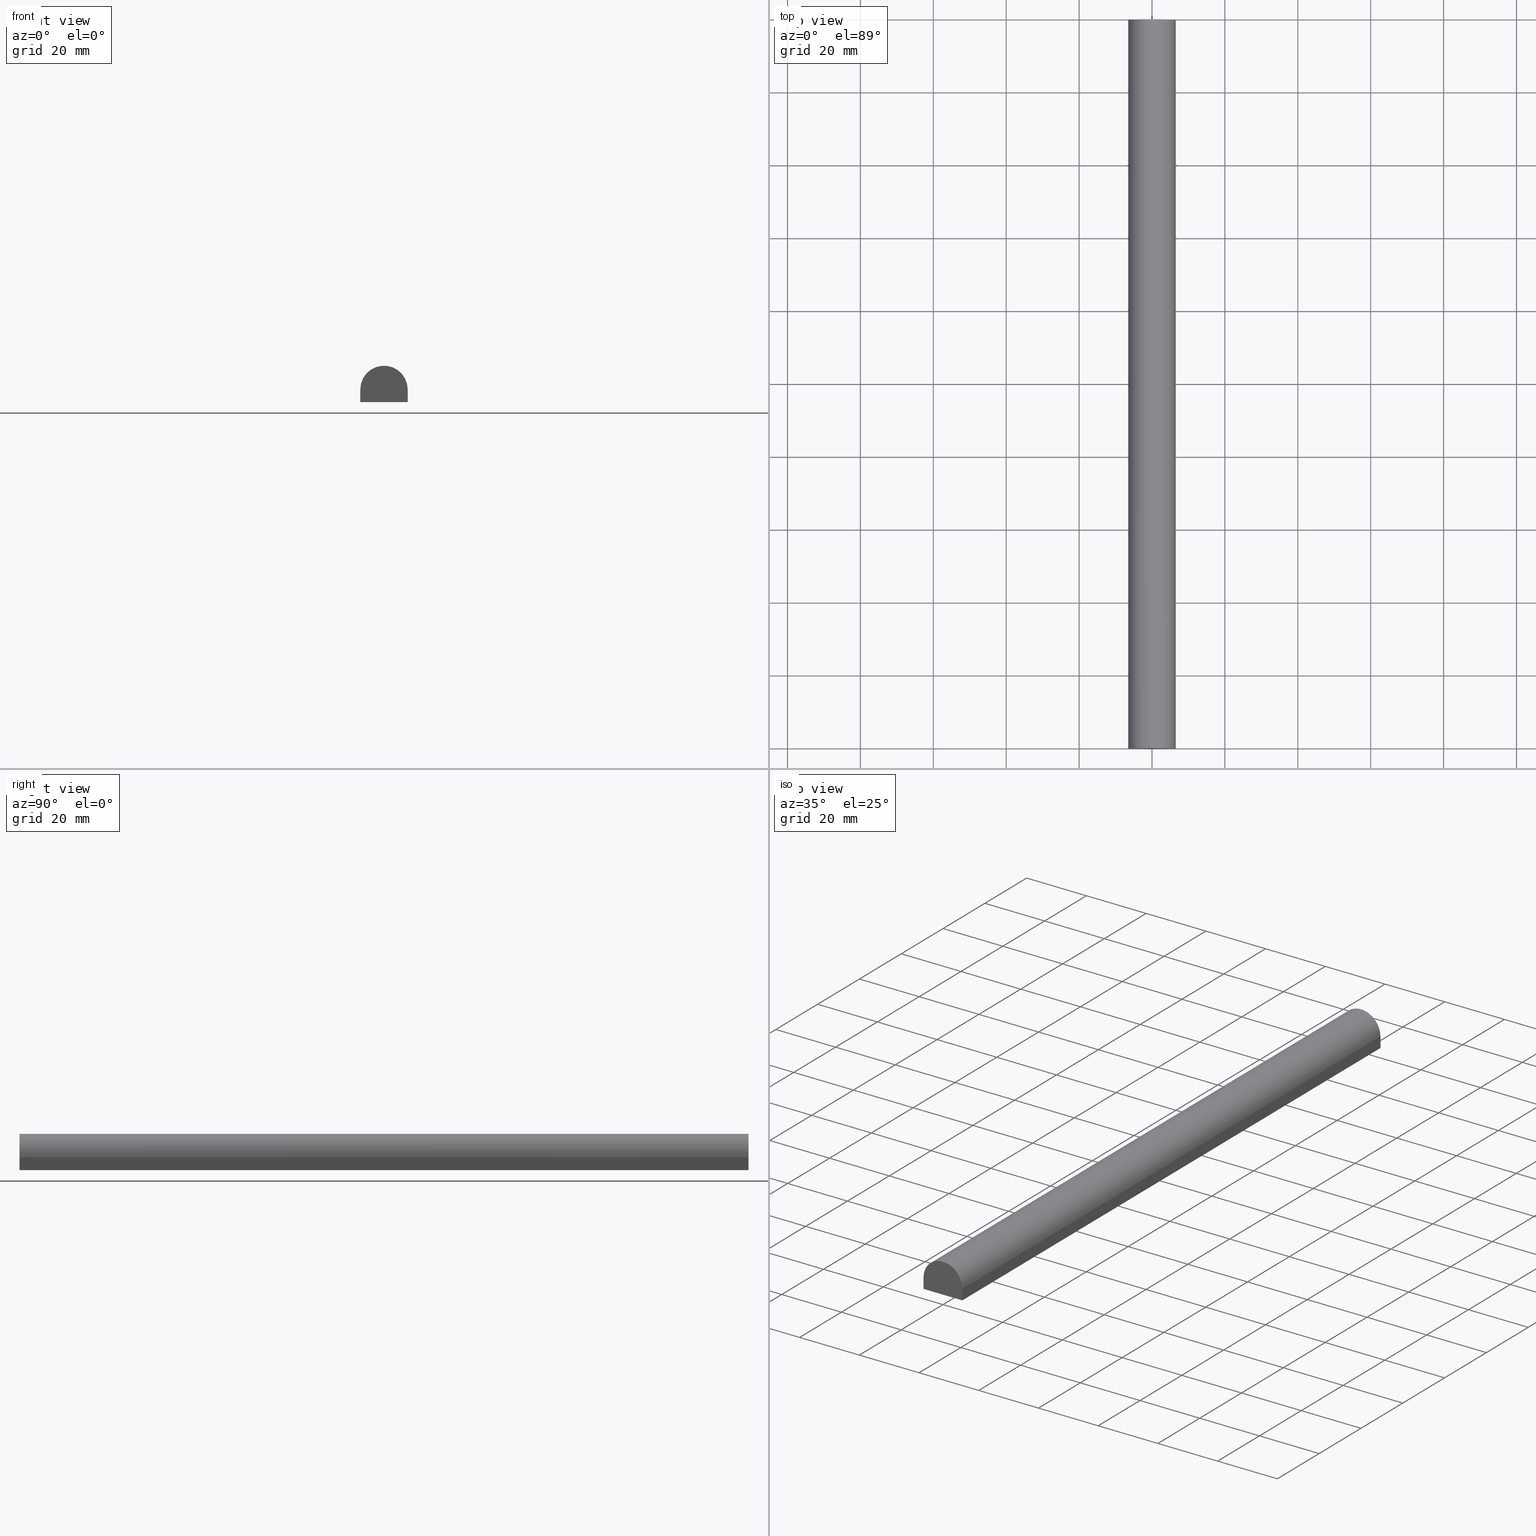
[diagram: canonical four-view strip — front | top / right | iso, engineering-drawing reading convention]
A machine part, canonical four-view strip (front | top / right | iso — engineering-drawing reading convention). The complete STEP part file that produces these views, byte-faithful:
ISO-10303-21;
HEADER;
FILE_DESCRIPTION (( 'STEP AP214' ),
    '1' );
FILE_NAME ('TM_341_5.STEP',
    '2016-05-10T02:57:23',
    ( '' ),
    ( '' ),
    'SwSTEP 2.0',
    'SolidWorks 2015',
    '' );
FILE_SCHEMA (( 'AUTOMOTIVE_DESIGN' ));
ENDSEC;

DATA;
#1 = CONTEXT_DEPENDENT_SHAPE_REPRESENTATION ( #4, #200 ) ;
#2 = APPLICATION_PROTOCOL_DEFINITION ( 'draft international standard', 'automotive_design', 1998, #119 ) ;
#3 = PRESENTATION_LAYER_ASSIGNMENT (  '', '', ( #46 ) ) ;
#4 =( REPRESENTATION_RELATIONSHIP ('NONE','NONE', #55, #63 ) REPRESENTATION_RELATIONSHIP_WITH_TRANSFORMATION ( #213 )SHAPE_REPRESENTATION_RELATIONSHIP( ) );
#5 = EDGE_LOOP ( 'NONE', ( #183, #76, #186, #222 ) ) ;
#6 = DIRECTION ( 'NONE',  ( 0.0000000000000000000, 0.0000000000000000000, 1.000000000000000000 ) ) ;
#7 = AXIS2_PLACEMENT_3D ( 'NONE', #233, #88, #10 ) ;
#8 = COLOUR_RGB ( '',0.7921568627450980000, 0.8196078431372548800, 0.9333333333333333500 ) ;
#9 = DIRECTION ( 'NONE',  ( 0.0000000000000000000, 0.0000000000000000000, 1.000000000000000000 ) ) ;
#10 = DIRECTION ( 'NONE',  ( 1.000000000000000000, 0.0000000000000000000, 0.0000000000000000000 ) ) ;
#11 = VECTOR ( 'NONE', #16, 1000.000000000000000 ) ;
#12 = APPLICATION_PROTOCOL_DEFINITION ( 'draft international standard', 'automotive_design', 1998, #85 ) ;
#13 = PRODUCT_DEFINITION_FORMATION_WITH_SPECIFIED_SOURCE ( 'ANY', '', #206, .NOT_KNOWN. ) ;
#14 = ADVANCED_FACE ( 'NONE', ( #109 ), #195, .T. ) ;
#15 = SURFACE_STYLE_FILL_AREA ( #153 ) ;
#16 = DIRECTION ( 'NONE',  ( 1.000000000000000000, -0.0000000000000000000, -0.0000000000000000000 ) ) ;
#17 = CARTESIAN_POINT ( 'NONE',  ( 6.500000000000000000, 0.0000000000000000000, -1.500000000000000000 ) ) ;
#18 = LINE ( 'NONE', #170, #143 ) ;
#19 = PLANE ( 'NONE',  #131 ) ;
#20 = DIRECTION ( 'NONE',  ( 1.000000000000000000, 0.0000000000000000000, 0.0000000000000000000 ) ) ;
#21 = ORIENTED_EDGE ( 'NONE', *, *, #149, .F. ) ;
#22 = UNCERTAINTY_MEASURE_WITH_UNIT (LENGTH_MEASURE( 1.000000000000000100E-005 ), #34, 'distance_accuracy_value', 'NONE');
#23 = CARTESIAN_POINT ( 'NONE',  ( -6.500000000000000000, 0.0000000000000000000, -1.500000000000000000 ) ) ;
#24 = LINE ( 'NONE', #142, #65 ) ;
#25 = DIRECTION ( 'NONE',  ( -0.0000000000000000000, 1.000000000000000000, 0.0000000000000000000 ) ) ;
#26 = CARTESIAN_POINT ( 'NONE',  ( 0.0000000000000000000, 0.0000000000000000000, 0.0000000000000000000 ) ) ;
#27 = COLOUR_RGB ( '',0.7921568627450980000, 0.8196078431372548800, 0.9333333333333333500 ) ;
#28 =( NAMED_UNIT ( * ) SI_UNIT ( $, .STERADIAN. ) SOLID_ANGLE_UNIT ( ) );
#29 = MECHANICAL_DESIGN_GEOMETRIC_PRESENTATION_REPRESENTATION (  '', ( #46 ), #35 ) ;
#30 = CARTESIAN_POINT ( 'NONE',  ( 0.0000000000000000000, 200.0000000000000000, 0.0000000000000000000 ) ) ;
#31 = CARTESIAN_POINT ( 'NONE',  ( 6.500000000000000000, 0.0000000000000000000, 0.0000000000000000000 ) ) ;
#32 = DIRECTION ( 'NONE',  ( 0.0000000000000000000, 0.0000000000000000000, -1.000000000000000000 ) ) ;
#33 = CARTESIAN_POINT ( 'NONE',  ( 6.500000000000000000, 200.0000000000000000, -5.000000000000000000 ) ) ;
#34 =( LENGTH_UNIT ( ) NAMED_UNIT ( * ) SI_UNIT ( .MILLI., .METRE. ) );
#35 =( GEOMETRIC_REPRESENTATION_CONTEXT ( 3 ) GLOBAL_UNCERTAINTY_ASSIGNED_CONTEXT ( ( #151 ) ) GLOBAL_UNIT_ASSIGNED_CONTEXT ( ( #154, #232, #236 ) ) REPRESENTATION_CONTEXT ( 'NONE', 'WORKASPACE' ) );
#36 = DIRECTION ( 'NONE',  ( 0.0000000000000000000, -1.000000000000000000, 0.0000000000000000000 ) ) ;
#37 = CARTESIAN_POINT ( 'NONE',  ( 0.0000000000000000000, 0.0000000000000000000, 0.0000000000000000000 ) ) ;
#38 = SURFACE_SIDE_STYLE ('',( #15 ) ) ;
#39 = EDGE_CURVE ( 'NONE', #129, #91, #90, .T. ) ;
#40 = FILL_AREA_STYLE ('',( #81 ) ) ;
#41 = LINE ( 'NONE', #51, #47 ) ;
#42 = FILL_AREA_STYLE_COLOUR ( '', #27 ) ;
#43 = AXIS2_PLACEMENT_3D ( 'NONE', #44, #141, #100 ) ;
#44 = CARTESIAN_POINT ( 'NONE',  ( 0.0000000000000000000, 0.0000000000000000000, 0.0000000000000000000 ) ) ;
#45 = CARTESIAN_POINT ( 'NONE',  ( -6.500000000000000000, 200.0000000000000000, -5.000000000000000000 ) ) ;
#46 = STYLED_ITEM ( 'NONE', ( #152 ), #190 ) ;
#47 = VECTOR ( 'NONE', #110, 1000.000000000000000 ) ;
#48 = EDGE_CURVE ( 'NONE', #229, #180, #156, .T. ) ;
#49 = EDGE_CURVE ( 'NONE', #180, #238, #68, .T. ) ;
#50 = PLANE ( 'NONE',  #58 ) ;
#51 = CARTESIAN_POINT ( 'NONE',  ( -6.500000000000000000, 0.0000000000000000000, 0.0000000000000000000 ) ) ;
#52 = DIRECTION ( 'NONE',  ( 1.000000000000000000, 0.0000000000000000000, 0.0000000000000000000 ) ) ;
#53 = DIRECTION ( 'NONE',  ( 0.0000000000000000000, 0.0000000000000000000, 1.000000000000000000 ) ) ;
#54 = ADVANCED_FACE ( 'NONE', ( #194 ), #147, .F. ) ;
#55 = SHAPE_REPRESENTATION ( 'TM_341_5', ( #184, #7 ), #137 ) ;
#56 = ORIENTED_EDGE ( 'NONE', *, *, #57, .T. ) ;
#57 = EDGE_CURVE ( 'NONE', #229, #167, #139, .T. ) ;
#58 = AXIS2_PLACEMENT_3D ( 'NONE', #30, #198, #70 ) ;
#59 = DIRECTION ( 'NONE',  ( 1.000000000000000000, -0.0000000000000000000, -0.0000000000000000000 ) ) ;
#60 = VECTOR ( 'NONE', #174, 1000.000000000000000 ) ;
#61 = CARTESIAN_POINT ( 'NONE',  ( 0.0000000000000000000, 200.0000000000000000, -1.500000000000000000 ) ) ;
#62 = EDGE_CURVE ( 'NONE', #74, #129, #208, .T. ) ;
#63 = SHAPE_REPRESENTATION ( 'rubber foam', ( #43 ), #234 ) ;
#64 = LINE ( 'NONE', #106, #92 ) ;
#65 = VECTOR ( 'NONE', #168, 1000.000000000000000 ) ;
#66 = SURFACE_SIDE_STYLE ('',( #235 ) ) ;
#67 = CARTESIAN_POINT ( 'NONE',  ( 0.0000000000000000000, 0.0000000000000000000, -1.500000000000000000 ) ) ;
#68 = LINE ( 'NONE', #31, #162 ) ;
#69 = ORIENTED_EDGE ( 'NONE', *, *, #149, .T. ) ;
#70 = DIRECTION ( 'NONE',  ( 1.000000000000000000, 0.0000000000000000000, 0.0000000000000000000 ) ) ;
#71 = PLANE ( 'NONE',  #87 ) ;
#72 = MANIFOLD_SOLID_BREP ( '���߰�1', #207 ) ;
#73 = PRODUCT_RELATED_PRODUCT_CATEGORY ( 'part', '', ( #226 ) ) ;
#74 = VERTEX_POINT ( 'NONE', #113 ) ;
#75 = VERTEX_POINT ( 'NONE', #23 ) ;
#76 = ORIENTED_EDGE ( 'NONE', *, *, #49, .T. ) ;
#77 = ORIENTED_EDGE ( 'NONE', *, *, #39, .T. ) ;
#78 = ADVANCED_FACE ( 'NONE', ( #212 ), #123, .T. ) ;
#79 = FACE_OUTER_BOUND ( 'NONE', #134, .T. ) ;
#80 = APPLICATION_PROTOCOL_DEFINITION ( 'draft international standard', 'automotive_design', 1998, #163 ) ;
#81 = FILL_AREA_STYLE_COLOUR ( '', #8 ) ;
#82 = ORIENTED_EDGE ( 'NONE', *, *, #210, .F. ) ;
#83 = DIRECTION ( 'NONE',  ( 0.0000000000000000000, 0.0000000000000000000, -1.000000000000000000 ) ) ;
#84 = ORIENTED_EDGE ( 'NONE', *, *, #48, .T. ) ;
#85 = APPLICATION_CONTEXT ( 'automotive_design' ) ;
#86 = VECTOR ( 'NONE', #228, 1000.000000000000000 ) ;
#87 = AXIS2_PLACEMENT_3D ( 'NONE', #172, #52, #187 ) ;
#88 = DIRECTION ( 'NONE',  ( 0.0000000000000000000, 0.0000000000000000000, 1.000000000000000000 ) ) ;
#89 = DIRECTION ( 'NONE',  ( 0.0000000000000000000, 0.0000000000000000000, 1.000000000000000000 ) ) ;
#90 = LINE ( 'NONE', #96, #115 ) ;
#91 = VERTEX_POINT ( 'NONE', #192 ) ;
#92 = VECTOR ( 'NONE', #107, 1000.000000000000000 ) ;
#93 = STYLED_ITEM ( 'NONE', ( #202 ), #72 ) ;
#94 = SURFACE_STYLE_USAGE ( .BOTH. , #66 ) ;
#95 = CIRCLE ( 'NONE', #101, 6.499999999999999100 ) ;
#96 = CARTESIAN_POINT ( 'NONE',  ( -6.500000000000000000, 1000.000000000000000, -5.000000000000000000 ) ) ;
#97 = ORIENTED_EDGE ( 'NONE', *, *, #57, .F. ) ;
#98 =( LENGTH_UNIT ( ) NAMED_UNIT ( * ) SI_UNIT ( .MILLI., .METRE. ) );
#99 = ADVANCED_FACE ( 'NONE', ( #79 ), #50, .T. ) ;
#100 = DIRECTION ( 'NONE',  ( 1.000000000000000000, 0.0000000000000000000, 0.0000000000000000000 ) ) ;
#101 = AXIS2_PLACEMENT_3D ( 'NONE', #67, #125, #53 ) ;
#102 = DIRECTION ( 'NONE',  ( -0.0000000000000000000, -0.0000000000000000000, 1.000000000000000000 ) ) ;
#103 = ORIENTED_EDGE ( 'NONE', *, *, #62, .T. ) ;
#104 =( NAMED_UNIT ( * ) PLANE_ANGLE_UNIT ( ) SI_UNIT ( $, .RADIAN. ) );
#105 = CARTESIAN_POINT ( 'NONE',  ( 6.500000000000000000, 0.0000000000000000000, -5.000000000000000000 ) ) ;
#106 = CARTESIAN_POINT ( 'NONE',  ( -6.500000000000000000, 1000.000000000000000, -1.500000000000000000 ) ) ;
#107 = DIRECTION ( 'NONE',  ( 0.0000000000000000000, -1.000000000000000000, 0.0000000000000000000 ) ) ;
#108 = EDGE_CURVE ( 'NONE', #75, #91, #41, .T. ) ;
#109 = FACE_OUTER_BOUND ( 'NONE', #124, .T. ) ;
#110 = DIRECTION ( 'NONE',  ( -0.0000000000000000000, -0.0000000000000000000, -1.000000000000000000 ) ) ;
#111 = CARTESIAN_POINT ( 'NONE',  ( 6.500000000000000000, 200.0000000000000000, -1.500000000000000000 ) ) ;
#112 = ORIENTED_EDGE ( 'NONE', *, *, #196, .T. ) ;
#113 = CARTESIAN_POINT ( 'NONE',  ( -6.500000000000000000, 200.0000000000000000, -1.500000000000000000 ) ) ;
#114 = CARTESIAN_POINT ( 'NONE',  ( 0.0000000000000000000, 1000.000000000000000, -1.500000000000000000 ) ) ;
#115 = VECTOR ( 'NONE', #191, 1000.000000000000000 ) ;
#116 = DIRECTION ( 'NONE',  ( -1.000000000000000000, 0.0000000000000000000, 0.0000000000000000000 ) ) ;
#117 = AXIS2_PLACEMENT_3D ( 'NONE', #179, #83, #116 ) ;
#118 = DIRECTION ( 'NONE',  ( -1.000000000000000000, 0.0000000000000000000, 0.0000000000000000000 ) ) ;
#119 = APPLICATION_CONTEXT ( 'automotive_design' ) ;
#120 = DIRECTION ( 'NONE',  ( 0.0000000000000000000, 0.0000000000000000000, 1.000000000000000000 ) ) ;
#121 = ORIENTED_EDGE ( 'NONE', *, *, #161, .F. ) ;
#122 = EDGE_CURVE ( 'NONE', #91, #180, #18, .T. ) ;
#123 = CYLINDRICAL_SURFACE ( 'NONE', #128, 6.500000000000000900 ) ;
#124 = EDGE_LOOP ( 'NONE', ( #219, #188, #130, #84 ) ) ;
#125 = DIRECTION ( 'NONE',  ( -0.0000000000000000000, -1.000000000000000000, -0.0000000000000000000 ) ) ;
#126 = CARTESIAN_POINT ( 'NONE',  ( 0.0000000000000000000, 0.0000000000000000000, 0.0000000000000000000 ) ) ;
#127 = UNCERTAINTY_MEASURE_WITH_UNIT (LENGTH_MEASURE( 1.000000000000000100E-005 ), #98, 'distance_accuracy_value', 'NONE');
#128 = AXIS2_PLACEMENT_3D ( 'NONE', #114, #36, #32 ) ;
#129 = VERTEX_POINT ( 'NONE', #45 ) ;
#130 = ORIENTED_EDGE ( 'NONE', *, *, #161, .T. ) ;
#131 = AXIS2_PLACEMENT_3D ( 'NONE', #215, #118, #6 ) ;
#132 = FACE_OUTER_BOUND ( 'NONE', #185, .T. ) ;
#133 = DIRECTION ( 'NONE',  ( 1.000000000000000000, 0.0000000000000000000, 0.0000000000000000000 ) ) ;
#134 = EDGE_LOOP ( 'NONE', ( #121, #144, #140, #97 ) ) ;
#135 = CARTESIAN_POINT ( 'NONE',  ( -6.500000000000000000, 200.0000000000000000, 0.0000000000000000000 ) ) ;
#136 = CIRCLE ( 'NONE', #240, 6.499999999999999100 ) ;
#137 =( GEOMETRIC_REPRESENTATION_CONTEXT ( 3 ) GLOBAL_UNCERTAINTY_ASSIGNED_CONTEXT ( ( #127 ) ) GLOBAL_UNIT_ASSIGNED_CONTEXT ( ( #98, #104, #159 ) ) REPRESENTATION_CONTEXT ( 'NONE', 'WORKASPACE' ) );
#138 = PRODUCT_DEFINITION_CONTEXT ( 'detailed design', #85, 'design' ) ;
#139 = LINE ( 'NONE', #239, #231 ) ;
#140 = ORIENTED_EDGE ( 'NONE', *, *, #196, .F. ) ;
#141 = DIRECTION ( 'NONE',  ( 0.0000000000000000000, 0.0000000000000000000, 1.000000000000000000 ) ) ;
#142 = CARTESIAN_POINT ( 'NONE',  ( 6.500000000000000000, 1000.000000000000000, -1.500000000000000000 ) ) ;
#143 = VECTOR ( 'NONE', #59, 1000.000000000000000 ) ;
#144 = ORIENTED_EDGE ( 'NONE', *, *, #62, .F. ) ;
#145 = ORIENTED_EDGE ( 'NONE', *, *, #108, .F. ) ;
#146 =( NAMED_UNIT ( * ) PLANE_ANGLE_UNIT ( ) SI_UNIT ( $, .RADIAN. ) );
#147 = PLANE ( 'NONE',  #204 ) ;
#148 = ORIENTED_EDGE ( 'NONE', *, *, #49, .F. ) ;
#149 = EDGE_CURVE ( 'NONE', #167, #238, #24, .T. ) ;
#150 = APPLICATION_PROTOCOL_DEFINITION ( 'draft international standard', 'automotive_design', 1998, #201 ) ;
#151 = UNCERTAINTY_MEASURE_WITH_UNIT (LENGTH_MEASURE( 1.000000000000000100E-005 ), #154, 'distance_accuracy_value', 'NONE');
#152 = PRESENTATION_STYLE_ASSIGNMENT (( #94 ) ) ;
#153 = FILL_AREA_STYLE ('',( #42 ) ) ;
#154 =( LENGTH_UNIT ( ) NAMED_UNIT ( * ) SI_UNIT ( .MILLI., .METRE. ) );
#155 = ORIENTED_EDGE ( 'NONE', *, *, #48, .F. ) ;
#156 = LINE ( 'NONE', #203, #86 ) ;
#157 = PRODUCT_DEFINITION ( 'UNKNOWN', '', #13, #138 ) ;
#158 =( NAMED_UNIT ( * ) SI_UNIT ( $, .STERADIAN. ) SOLID_ANGLE_UNIT ( ) );
#159 =( NAMED_UNIT ( * ) SI_UNIT ( $, .STERADIAN. ) SOLID_ANGLE_UNIT ( ) );
#160 = ADVANCED_FACE ( 'NONE', ( #132 ), #71, .T. ) ;
#161 = EDGE_CURVE ( 'NONE', #129, #229, #221, .T. ) ;
#162 = VECTOR ( 'NONE', #102, 1000.000000000000000 ) ;
#163 = APPLICATION_CONTEXT ( 'automotive_design' ) ;
#164 = PRODUCT_CONTEXT ( 'NONE', #163, 'mechanical' ) ;
#165 = PRODUCT_DEFINITION_SHAPE ( 'NONE', 'NONE',  #157 ) ;
#166 = AXIS2_PLACEMENT_3D ( 'NONE', #126, #9, #133 ) ;
#167 = VERTEX_POINT ( 'NONE', #111 ) ;
#168 = DIRECTION ( 'NONE',  ( 0.0000000000000000000, -1.000000000000000000, 0.0000000000000000000 ) ) ;
#169 = PRODUCT_RELATED_PRODUCT_CATEGORY ( 'part', '', ( #206 ) ) ;
#170 = CARTESIAN_POINT ( 'NONE',  ( 0.0000000000000000000, 0.0000000000000000000, -5.000000000000000000 ) ) ;
#171 = FACE_OUTER_BOUND ( 'NONE', #237, .T. ) ;
#172 = CARTESIAN_POINT ( 'NONE',  ( 6.500000000000000000, 1000.000000000000000, -5.000000000000000000 ) ) ;
#173 = SHAPE_DEFINITION_REPRESENTATION ( #165, #55 ) ;
#174 = DIRECTION ( 'NONE',  ( -0.0000000000000000000, -0.0000000000000000000, -1.000000000000000000 ) ) ;
#175 = PRODUCT_DEFINITION ( 'UNKNOWN', '', #218, #205 ) ;
#176 = EDGE_LOOP ( 'NONE', ( #82, #21, #112, #199 ) ) ;
#177 = ADVANCED_FACE ( 'NONE', ( #171 ), #19, .T. ) ;
#178 =( LENGTH_UNIT ( ) NAMED_UNIT ( * ) SI_UNIT ( .MILLI., .METRE. ) );
#179 = CARTESIAN_POINT ( 'NONE',  ( -6.500000000000000000, 1000.000000000000000, -5.000000000000000000 ) ) ;
#180 = VERTEX_POINT ( 'NONE', #105 ) ;
#181 = MECHANICAL_DESIGN_GEOMETRIC_PRESENTATION_REPRESENTATION (  '', ( #93 ), #223 ) ;
#182 = SURFACE_STYLE_USAGE ( .BOTH. , #38 ) ;
#183 = ORIENTED_EDGE ( 'NONE', *, *, #122, .T. ) ;
#184 = AXIS2_PLACEMENT_3D ( 'NONE', #37, #89, #211 ) ;
#185 = EDGE_LOOP ( 'NONE', ( #148, #155, #56, #69 ) ) ;
#186 = ORIENTED_EDGE ( 'NONE', *, *, #210, .T. ) ;
#187 = DIRECTION ( 'NONE',  ( 0.0000000000000000000, 0.0000000000000000000, -1.000000000000000000 ) ) ;
#188 = ORIENTED_EDGE ( 'NONE', *, *, #39, .F. ) ;
#189 = PRODUCT_DEFINITION_SHAPE ( 'NONE', 'NONE',  #175 ) ;
#190 = ADVANCED_BREP_SHAPE_REPRESENTATION ( '', ( #72, #43 ), #234 ) ;
#191 = DIRECTION ( 'NONE',  ( 0.0000000000000000000, -1.000000000000000000, 0.0000000000000000000 ) ) ;
#192 = CARTESIAN_POINT ( 'NONE',  ( -6.500000000000000000, 0.0000000000000000000, -5.000000000000000000 ) ) ;
#193 = CARTESIAN_POINT ( 'NONE',  ( 0.0000000000000000000, 200.0000000000000000, -5.000000000000000000 ) ) ;
#194 = FACE_OUTER_BOUND ( 'NONE', #5, .T. ) ;
#195 = PLANE ( 'NONE',  #117 ) ;
#196 = EDGE_CURVE ( 'NONE', #167, #74, #136, .T. ) ;
#197 = DIRECTION ( 'NONE',  ( -0.0000000000000000000, -1.000000000000000000, -0.0000000000000000000 ) ) ;
#198 = DIRECTION ( 'NONE',  ( -0.0000000000000000000, 1.000000000000000000, 0.0000000000000000000 ) ) ;
#199 = ORIENTED_EDGE ( 'NONE', *, *, #230, .T. ) ;
#200 = PRODUCT_DEFINITION_SHAPE ( 'NONE', 'NONE',  #241 ) ;
#201 = APPLICATION_CONTEXT ( 'automotive_design' ) ;
#202 = PRESENTATION_STYLE_ASSIGNMENT (( #182 ) ) ;
#203 = CARTESIAN_POINT ( 'NONE',  ( 6.500000000000000000, 1000.000000000000000, -5.000000000000000000 ) ) ;
#204 = AXIS2_PLACEMENT_3D ( 'NONE', #26, #25, #20 ) ;
#205 = PRODUCT_DEFINITION_CONTEXT ( 'detailed design', #201, 'design' ) ;
#206 = PRODUCT ( 'TM_341_5', 'TM_341_5', '', ( #227 ) ) ;
#207 = CLOSED_SHELL ( 'NONE', ( #14, #160, #78, #177, #99, #54 ) ) ;
#208 = LINE ( 'NONE', #135, #60 ) ;
#209 = SHAPE_REPRESENTATION_RELATIONSHIP ( 'NONE' , 'NONE' ,  #63, #190 ) ;
#210 = EDGE_CURVE ( 'NONE', #238, #75, #95, .T. ) ;
#211 = DIRECTION ( 'NONE',  ( 1.000000000000000000, 0.0000000000000000000, 0.0000000000000000000 ) ) ;
#212 = FACE_OUTER_BOUND ( 'NONE', #176, .T. ) ;
#213 = ITEM_DEFINED_TRANSFORMATION ( 'NONE', 'NONE', #7,  #43 ) ;
#214 = PRESENTATION_LAYER_ASSIGNMENT (  '', '', ( #93 ) ) ;
#215 = CARTESIAN_POINT ( 'NONE',  ( -6.500000000000000000, 1000.000000000000000, -1.500000000000000000 ) ) ;
#216 = SHAPE_DEFINITION_REPRESENTATION ( #189, #63 ) ;
#217 =( NAMED_UNIT ( * ) PLANE_ANGLE_UNIT ( ) SI_UNIT ( $, .RADIAN. ) );
#218 = PRODUCT_DEFINITION_FORMATION_WITH_SPECIFIED_SOURCE ( 'ANY', '', #226, .NOT_KNOWN. ) ;
#219 = ORIENTED_EDGE ( 'NONE', *, *, #122, .F. ) ;
#220 = ORIENTED_EDGE ( 'NONE', *, *, #230, .F. ) ;
#221 = LINE ( 'NONE', #193, #11 ) ;
#222 = ORIENTED_EDGE ( 'NONE', *, *, #108, .T. ) ;
#223 =( GEOMETRIC_REPRESENTATION_CONTEXT ( 3 ) GLOBAL_UNCERTAINTY_ASSIGNED_CONTEXT ( ( #22 ) ) GLOBAL_UNIT_ASSIGNED_CONTEXT ( ( #34, #146, #28 ) ) REPRESENTATION_CONTEXT ( 'NONE', 'WORKASPACE' ) );
#224 = DIRECTION ( 'NONE',  ( -0.0000000000000000000, -0.0000000000000000000, 1.000000000000000000 ) ) ;
#225 = UNCERTAINTY_MEASURE_WITH_UNIT (LENGTH_MEASURE( 1.000000000000000100E-005 ), #178, 'distance_accuracy_value', 'NONE');
#226 = PRODUCT ( 'rubber foam', 'rubber foam', '', ( #164 ) ) ;
#227 = PRODUCT_CONTEXT ( 'NONE', #119, 'mechanical' ) ;
#228 = DIRECTION ( 'NONE',  ( 0.0000000000000000000, -1.000000000000000000, 0.0000000000000000000 ) ) ;
#229 = VERTEX_POINT ( 'NONE', #33 ) ;
#230 = EDGE_CURVE ( 'NONE', #74, #75, #64, .T. ) ;
#231 = VECTOR ( 'NONE', #224, 1000.000000000000000 ) ;
#232 =( NAMED_UNIT ( * ) PLANE_ANGLE_UNIT ( ) SI_UNIT ( $, .RADIAN. ) );
#233 = CARTESIAN_POINT ( 'NONE',  ( 0.0000000000000000000, 0.0000000000000000000, 0.0000000000000000000 ) ) ;
#234 =( GEOMETRIC_REPRESENTATION_CONTEXT ( 3 ) GLOBAL_UNCERTAINTY_ASSIGNED_CONTEXT ( ( #225 ) ) GLOBAL_UNIT_ASSIGNED_CONTEXT ( ( #178, #217, #158 ) ) REPRESENTATION_CONTEXT ( 'NONE', 'WORKASPACE' ) );
#235 = SURFACE_STYLE_FILL_AREA ( #40 ) ;
#236 =( NAMED_UNIT ( * ) SI_UNIT ( $, .STERADIAN. ) SOLID_ANGLE_UNIT ( ) );
#237 = EDGE_LOOP ( 'NONE', ( #145, #220, #103, #77 ) ) ;
#238 = VERTEX_POINT ( 'NONE', #17 ) ;
#239 = CARTESIAN_POINT ( 'NONE',  ( 6.500000000000000000, 200.0000000000000000, 0.0000000000000000000 ) ) ;
#240 = AXIS2_PLACEMENT_3D ( 'NONE', #61, #197, #120 ) ;
#241 = NEXT_ASSEMBLY_USAGE_OCCURRENCE ( 'NAUO1', ' ', ' ', #157, #175, $ ) ;
ENDSEC;
END-ISO-10303-21;
